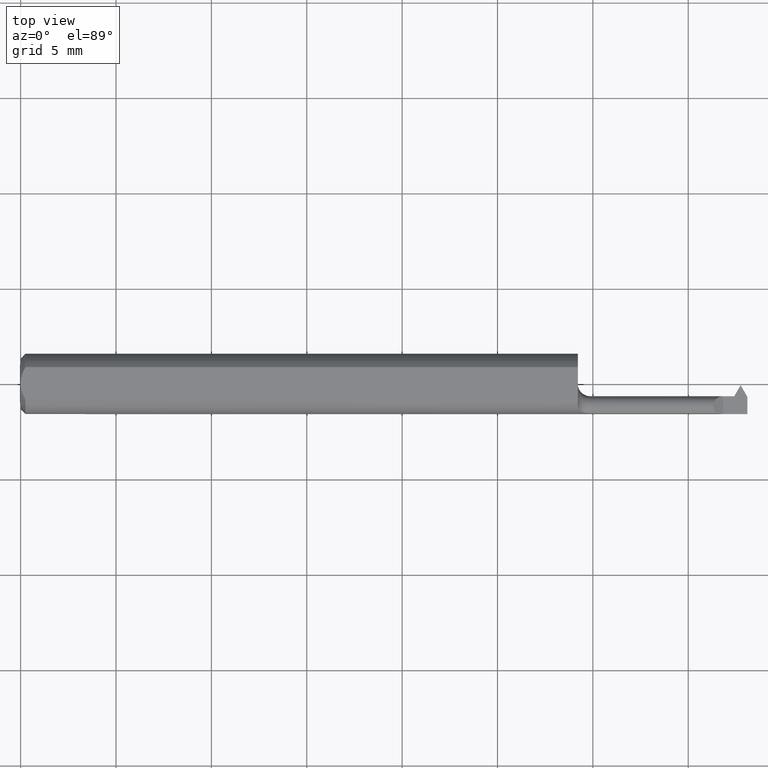
[diagram: clean part render]
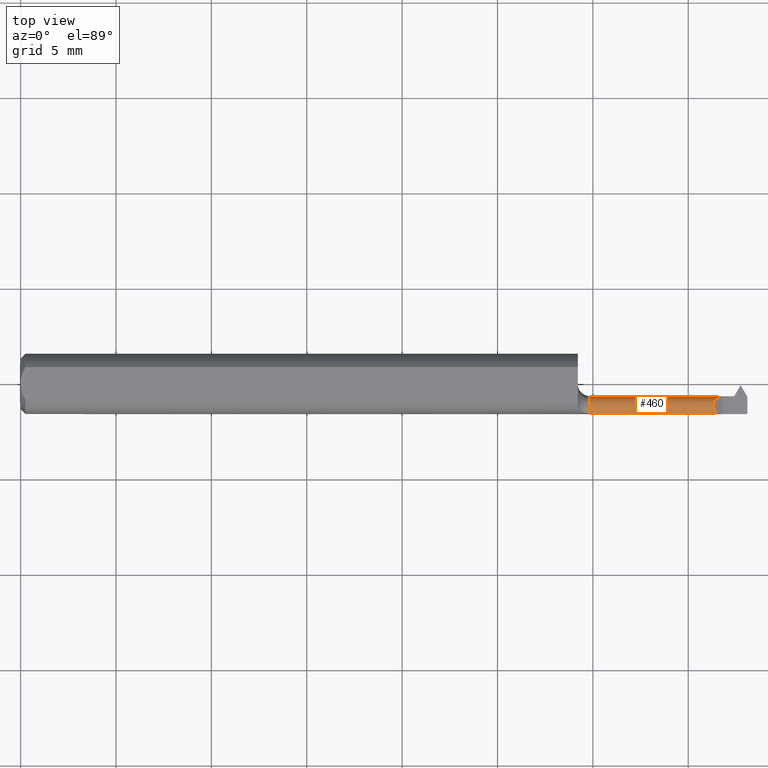
[diagram: same view with one face highlighted and labeled with its STEP entity id]
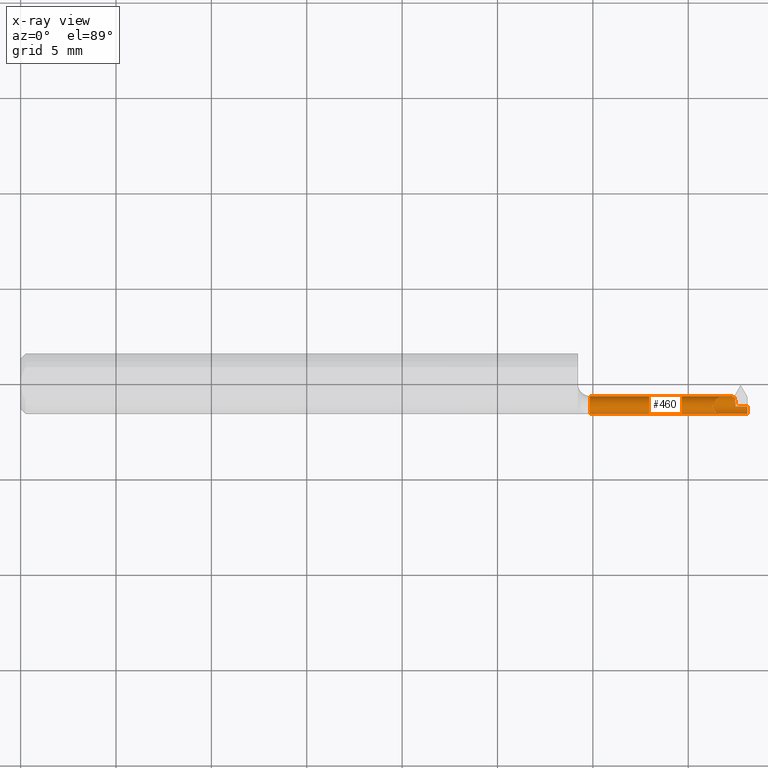
[diagram: x-ray of the same camera — body ghosted, the highlighted face saturated]
A machine part, top view. The second image highlights one B-rep face of the part: STEP entity #460.
The next image is the same camera in x-ray: the body ghosted, the highlighted face saturated — about 0% of this face is hidden behind the body in this view.
In plain terms, the highlighted cylindrical surface (edge-blend (fillet) strip) has radius 0.5207 mm, axis along (-1, -0, -0).
Its self-contained STEP definition (entity closure, byte-faithful):
#1 =( BOUNDED_CURVE ( )  B_SPLINE_CURVE ( 3, ( #279, #433, #429, #713 ),
 .UNSPECIFIED., .F., .F. ) 
 B_SPLINE_CURVE_WITH_KNOTS ( ( 4, 4 ),
 ( 5.470482129107343994, 7.853981633974481902 ),
 .UNSPECIFIED. ) 
 CURVE ( )  GEOMETRIC_REPRESENTATION_ITEM ( )  RATIONAL_B_SPLINE_CURVE ( ( 1.000000000000000000, 0.5800232588578038140, 0.5800232588578038140, 1.000000000000000000 ) ) 
 REPRESENTATION_ITEM ( '' )  );
#7 = AXIS2_PLACEMENT_3D ( 'NONE', #301, #527, #259 ) ;
#8 = EDGE_CURVE ( 'NONE', #481, #241, #225, .T. ) ;
#9 = DIRECTION ( 'NONE',  ( 0.000000000000000000, 0.000000000000000000, 1.000000000000000000 ) ) ;
#19 = ORIENTED_EDGE ( 'NONE', *, *, #217, .T. ) ;
#22 = CARTESIAN_POINT ( 'NONE',  ( 1.470389556322883484, -0.02534999999999997672, -0.002761655807752531541 ) ) ;
#25 = CARTESIAN_POINT ( 'NONE',  ( 1.474695953239303359, -0.03029403366202107484, -0.01581818553756987253 ) ) ;
#39 = DIRECTION ( 'NONE',  ( 1.000000000000000000, 2.651650034397991252E-17, 0.000000000000000000 ) ) ;
#60 = DIRECTION ( 'NONE',  ( 1.000000000000000000, 2.651650034397991252E-17, 0.000000000000000000 ) ) ;
#66 = CIRCLE ( 'NONE', #374, 0.02050000000000005984 ) ;
#74 = CARTESIAN_POINT ( 'NONE',  ( 1.473739173235127708, -0.02697965050422822253, -0.008009988134029404766 ) ) ;
#77 = VECTOR ( 'NONE', #134, 39.37007874015748143 ) ;
#84 = EDGE_CURVE ( 'NONE', #201, #346, #258, .T. ) ;
#86 = CARTESIAN_POINT ( 'NONE',  ( 1.450000000000000178, -0.02534999999999998366, 4.286263797015756933E-17 ) ) ;
#89 = CIRCLE ( 'NONE', #586, 0.02050000000000002862 ) ;
#90 = ORIENTED_EDGE ( 'NONE', *, *, #351, .F. ) ;
#131 = DIRECTION ( 'NONE',  ( 0.000000000000000000, -1.000000000000000000, 0.000000000000000000 ) ) ;
#132 = ORIENTED_EDGE ( 'NONE', *, *, #355, .T. ) ;
#134 = DIRECTION ( 'NONE',  ( -1.000000000000000000, -2.651650034397991252E-17, -0.000000000000000000 ) ) ;
#158 = CARTESIAN_POINT ( 'NONE',  ( 1.500000000000000222, -0.04584999999999998799, -0.02050000000000002168 ) ) ;
#173 = EDGE_CURVE ( 'NONE', #538, #481, #551, .T. ) ;
#174 = LINE ( 'NONE', #396, #282 ) ;
#180 = VERTEX_POINT ( 'NONE', #604 ) ;
#189 = CYLINDRICAL_SURFACE ( 'NONE', #7, 0.02050000000000004596 ) ;
#197 = LINE ( 'NONE', #360, #484 ) ;
#201 = VERTEX_POINT ( 'NONE', #336 ) ;
#204 = DIRECTION ( 'NONE',  ( -1.000000000000000000, -2.651650034397991252E-17, -0.000000000000000000 ) ) ;
#205 = ORIENTED_EDGE ( 'NONE', *, *, #511, .T. ) ;
#210 = ORIENTED_EDGE ( 'NONE', *, *, #84, .F. ) ;
#217 = EDGE_CURVE ( 'NONE', #633, #446, #1, .T. ) ;
#225 =( BOUNDED_CURVE ( )  B_SPLINE_CURVE ( 3, ( #644, #357, #25, #74 ),
 .UNSPECIFIED., .F., .F. ) 
 B_SPLINE_CURVE_WITH_KNOTS ( ( 4, 4 ),
 ( 3.342305517569140960, 4.511676116405312520 ),
 .UNSPECIFIED. ) 
 CURVE ( )  GEOMETRIC_REPRESENTATION_ITEM ( )  RATIONAL_B_SPLINE_CURVE ( ( 1.000000000000000000, 0.8892572147114506942, 0.8892572147114506942, 1.000000000000000000 ) ) 
 REPRESENTATION_ITEM ( '' )  );
#241 = VERTEX_POINT ( 'NONE', #284 ) ;
#243 = ORIENTED_EDGE ( 'NONE', *, *, #419, .F. ) ;
#258 =( BOUNDED_CURVE ( )  B_SPLINE_CURVE ( 3, ( #522, #361, #22, #587 ),
 .UNSPECIFIED., .F., .F. ) 
 B_SPLINE_CURVE_WITH_KNOTS ( ( 4, 4 ),
 ( 1.169370598836199759, 1.570796326794896780 ),
 .UNSPECIFIED. ) 
 CURVE ( )  GEOMETRIC_REPRESENTATION_ITEM ( )  RATIONAL_B_SPLINE_CURVE ( ( 1.000000000000000000, 0.9866164697472196154, 0.9866164697472196154, 1.000000000000000000 ) ) 
 REPRESENTATION_ITEM ( '' )  );
#259 = DIRECTION ( 'NONE',  ( 0.000000000000000000, -1.000000000000000000, 0.000000000000000000 ) ) ;
#270 = CARTESIAN_POINT ( 'NONE',  ( 1.323475710773593939, -0.06073604143947651524, 0.01409452979925868155 ) ) ;
#279 = CARTESIAN_POINT ( 'NONE',  ( 1.435905470200741219, -0.06073604143947652911, 0.01409452979925863644 ) ) ;
#280 = ORIENTED_EDGE ( 'NONE', *, *, #8, .F. ) ;
#282 = VECTOR ( 'NONE', #60, 39.37007874015748143 ) ;
#284 = CARTESIAN_POINT ( 'NONE',  ( 1.473739173235127708, -0.02697965050422822253, -0.008009988134029404766 ) ) ;
#301 = CARTESIAN_POINT ( 'NONE',  ( 1.150000000000000133, -0.04585000000000003656, 0.000000000000000000 ) ) ;
#314 = CARTESIAN_POINT ( 'NONE',  ( 1.500000000000000222, -0.06073604143947643891, -0.01409452979925867287 ) ) ;
#321 = ORIENTED_EDGE ( 'NONE', *, *, #560, .T. ) ;
#333 = VERTEX_POINT ( 'NONE', #404 ) ;
#336 = CARTESIAN_POINT ( 'NONE',  ( 1.469321771042962466, -0.02697965050422498207, -0.008009988134030174983 ) ) ;
#343 = VECTOR ( 'NONE', #701, 39.37007874015748143 ) ;
#346 = VERTEX_POINT ( 'NONE', #620 ) ;
#350 = EDGE_LOOP ( 'NONE', ( #205, #243, #321, #19, #132, #210, #409, #280, #582, #90 ) ) ;
#351 = EDGE_CURVE ( 'NONE', #459, #538, #89, .T. ) ;
#355 = EDGE_CURVE ( 'NONE', #446, #346, #174, .T. ) ;
#357 = CARTESIAN_POINT ( 'NONE',  ( 1.475386358967280875, -0.03736748372183605615, -0.02050000000000005290 ) ) ;
#360 = CARTESIAN_POINT ( 'NONE',  ( 1.150000000000000133, -0.02697965050422639066, -0.008009988134033486570 ) ) ;
#361 = CARTESIAN_POINT ( 'NONE',  ( 1.469838970708920556, -0.02590058561396285305, -0.005467870559428829325 ) ) ;
#374 = AXIS2_PLACEMENT_3D ( 'NONE', #632, #693, #131 ) ;
#386 = VECTOR ( 'NONE', #39, 39.37007874015748143 ) ;
#388 = CARTESIAN_POINT ( 'NONE',  ( 1.671951421547187788, -0.04584999999999998799, -0.02050000000000002168 ) ) ;
#396 = CARTESIAN_POINT ( 'NONE',  ( 1.150000000000000133, -0.02534999999999999407, 4.286263797015756933E-17 ) ) ;
#404 = CARTESIAN_POINT ( 'NONE',  ( 1.175000000000000266, -0.06073604143947652911, -0.01409452979925869716 ) ) ;
#409 = ORIENTED_EDGE ( 'NONE', *, *, #537, .F. ) ;
#419 = EDGE_CURVE ( 'NONE', #180, #333, #66, .T. ) ;
#429 = CARTESIAN_POINT ( 'NONE',  ( 1.428110227122982412, -0.02535000000000000794, 0.02188977287701747432 ) ) ;
#433 = CARTESIAN_POINT ( 'NONE',  ( 1.420010247461813702, -0.04568598992171430534, 0.02998975253818596948 ) ) ;
#446 = VERTEX_POINT ( 'NONE', #86 ) ;
#459 = VERTEX_POINT ( 'NONE', #314 ) ;
#460 = ADVANCED_FACE ( 'NONE', ( #524 ), #189, .T. ) ;
#473 = LINE ( 'NONE', #639, #77 ) ;
#481 = VERTEX_POINT ( 'NONE', #571 ) ;
#484 = VECTOR ( 'NONE', #204, 39.37007874015748143 ) ;
#489 = LINE ( 'NONE', #270, #386 ) ;
#508 = DIRECTION ( 'NONE',  ( 1.000000000000000000, 0.000000000000000000, 0.000000000000000000 ) ) ;
#511 = EDGE_CURVE ( 'NONE', #459, #333, #473, .T. ) ;
#512 = CARTESIAN_POINT ( 'NONE',  ( 1.500000000000000222, -0.04585000000000002962, 0.000000000000000000 ) ) ;
#522 = CARTESIAN_POINT ( 'NONE',  ( 1.469321771042962466, -0.02697965050422498207, -0.008009988134030174983 ) ) ;
#524 = FACE_OUTER_BOUND ( 'NONE', #350, .T. ) ;
#527 = DIRECTION ( 'NONE',  ( -1.000000000000000000, -2.651650034397990944E-17, -0.000000000000000000 ) ) ;
#537 = EDGE_CURVE ( 'NONE', #241, #201, #197, .T. ) ;
#538 = VERTEX_POINT ( 'NONE', #158 ) ;
#551 = LINE ( 'NONE', #388, #343 ) ;
#560 = EDGE_CURVE ( 'NONE', #180, #633, #489, .T. ) ;
#571 = CARTESIAN_POINT ( 'NONE',  ( 1.475581018059172633, -0.04585000000000002962, -0.02050000000000003555 ) ) ;
#582 = ORIENTED_EDGE ( 'NONE', *, *, #173, .F. ) ;
#586 = AXIS2_PLACEMENT_3D ( 'NONE', #512, #508, #9 ) ;
#587 = CARTESIAN_POINT ( 'NONE',  ( 1.470951421547187499, -0.02534999999999999060, 0.000000000000000000 ) ) ;
#604 = CARTESIAN_POINT ( 'NONE',  ( 1.175000000000000266, -0.06073604143947652911, 0.01409452979925869716 ) ) ;
#620 = CARTESIAN_POINT ( 'NONE',  ( 1.470951421547187499, -0.02534999999999999060, 0.000000000000000000 ) ) ;
#632 = CARTESIAN_POINT ( 'NONE',  ( 1.175000000000000266, -0.04585000000000003656, 0.000000000000000000 ) ) ;
#633 = VERTEX_POINT ( 'NONE', #697 ) ;
#639 = CARTESIAN_POINT ( 'NONE',  ( 1.323475710773593939, -0.06073604143947651524, -0.01409452979925868155 ) ) ;
#644 = CARTESIAN_POINT ( 'NONE',  ( 1.475581018059172633, -0.04585000000000002962, -0.02050000000000003555 ) ) ;
#693 = DIRECTION ( 'NONE',  ( -1.000000000000000000, -2.651650034397990944E-17, -0.000000000000000000 ) ) ;
#697 = CARTESIAN_POINT ( 'NONE',  ( 1.435905470200741219, -0.06073604143947652911, 0.01409452979925863644 ) ) ;
#701 = DIRECTION ( 'NONE',  ( -1.000000000000000000, -0.000000000000000000, -0.000000000000000000 ) ) ;
#713 = CARTESIAN_POINT ( 'NONE',  ( 1.450000000000000178, -0.02534999999999998366, 4.286263797015756933E-17 ) ) ;